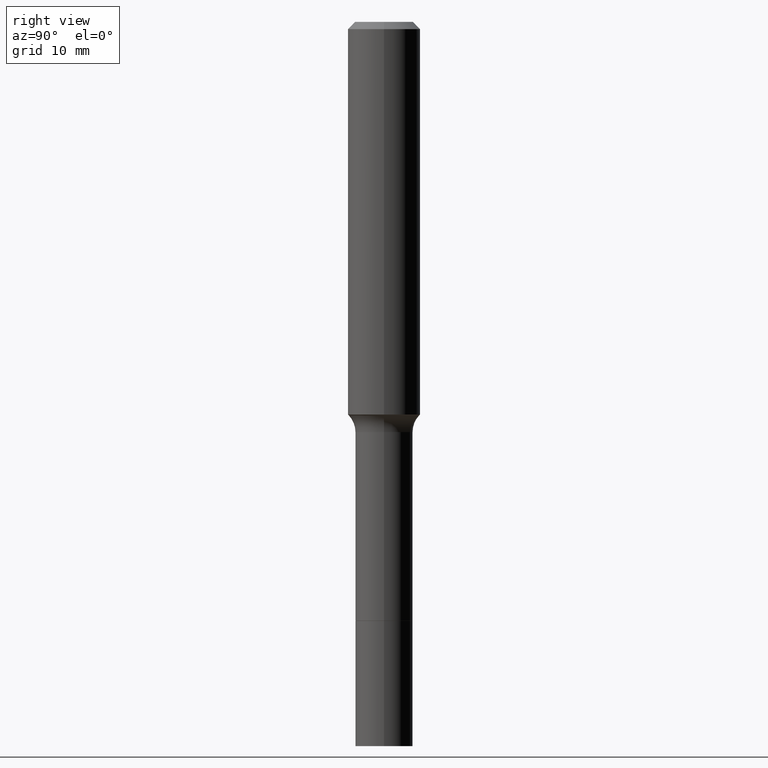
[diagram: clean part render]
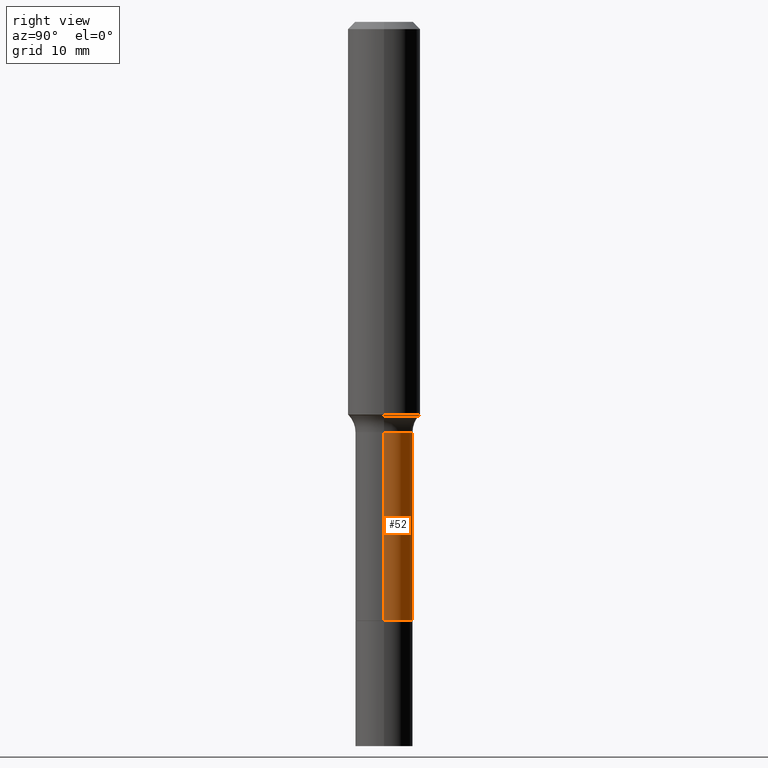
[diagram: same view with one face highlighted and labeled with its STEP entity id]
A machine part, right view. The second image highlights one B-rep face of the part: STEP entity #52.
In plain terms, the highlighted cylindrical surface (edge-blend (fillet) strip) has radius 2.3812 mm, axis along (-0, 0, 1).
Its self-contained STEP definition (entity closure, byte-faithful):
#8 = DIRECTION ( 'NONE',  ( -2.445468806185136597E-29, 3.491481338843145583E-15, 1.000000000000000000 ) ) ;
#18 = DIRECTION ( 'NONE',  ( -2.445468806185136597E-29, 3.491481338843145583E-15, 1.000000000000000000 ) ) ;
#38 = CIRCLE ( 'NONE', #97, 0.09374999999999994449 ) ;
#52 = ADVANCED_FACE ( 'NONE', ( #353 ), #188, .T. ) ;
#64 = VERTEX_POINT ( 'NONE', #270 ) ;
#97 = AXIS2_PLACEMENT_3D ( 'NONE', #409, #18, #450 ) ;
#100 = DIRECTION ( 'NONE',  ( 1.000000000000000000, -6.982962677686266711E-15, 4.876176775795935793E-29 ) ) ;
#134 = EDGE_CURVE ( 'NONE', #466, #302, #171, .T. ) ;
#147 = EDGE_CURVE ( 'NONE', #64, #480, #38, .T. ) ;
#156 = DIRECTION ( 'NONE',  ( -2.445468806185136877E-29, 3.491481338843145188E-15, 1.000000000000000000 ) ) ;
#171 = CIRCLE ( 'NONE', #489, 0.09375000000000001388 ) ;
#184 = DIRECTION ( 'NONE',  ( -2.445468806185136597E-29, 3.491481338843145583E-15, 1.000000000000000000 ) ) ;
#188 = CYLINDRICAL_SURFACE ( 'NONE', #249, 0.09374999999999997224 ) ;
#209 = CARTESIAN_POINT ( 'NONE',  ( -0.09374999999999997224, 6.661338147750937270E-16, -4.611501647113972594E-30 ) ) ;
#221 = VECTOR ( 'NONE', #156, 39.37007874015748143 ) ;
#246 = CARTESIAN_POINT ( 'NONE',  ( -0.09375000000000001388, -5.078924154224359757E-15, -1.952700000000000102 ) ) ;
#249 = AXIS2_PLACEMENT_3D ( 'NONE', #461, #184, #100 ) ;
#270 = CARTESIAN_POINT ( 'NONE',  ( 0.09374999999999994449, -5.326953078672984249E-15, -1.338200000000000056 ) ) ;
#280 = CARTESIAN_POINT ( 'NONE',  ( -0.09374999999999994449, -5.078924154224360545E-15, -1.338200000000000056 ) ) ;
#291 = CARTESIAN_POINT ( 'NONE',  ( 4.775266937837716483E-29, -6.817815610359010617E-15, -1.952700000000000102 ) ) ;
#295 = ORIENTED_EDGE ( 'NONE', *, *, #147, .F. ) ;
#302 = VERTEX_POINT ( 'NONE', #246 ) ;
#313 = ORIENTED_EDGE ( 'NONE', *, *, #412, .F. ) ;
#327 = CARTESIAN_POINT ( 'NONE',  ( 0.09375000000000001388, -7.472468361392097332E-15, -1.952700000000000102 ) ) ;
#353 = FACE_OUTER_BOUND ( 'NONE', #388, .T. ) ;
#359 = LINE ( 'NONE', #209, #221 ) ;
#382 = CARTESIAN_POINT ( 'NONE',  ( 0.09374999999999997224, -6.546527510330873069E-16, 4.571415727308688405E-30 ) ) ;
#388 = EDGE_LOOP ( 'NONE', ( #517, #437, #295, #313 ) ) ;
#394 = DIRECTION ( 'NONE',  ( -2.445468806185136877E-29, 3.491481338843145188E-15, 1.000000000000000000 ) ) ;
#409 = CARTESIAN_POINT ( 'NONE',  ( 3.272526356436949336E-29, -4.672300327639896745E-15, -1.338200000000000056 ) ) ;
#412 = EDGE_CURVE ( 'NONE', #466, #64, #431, .T. ) ;
#431 = LINE ( 'NONE', #382, #432 ) ;
#432 = VECTOR ( 'NONE', #394, 39.37007874015748143 ) ;
#437 = ORIENTED_EDGE ( 'NONE', *, *, #479, .T. ) ;
#450 = DIRECTION ( 'NONE',  ( 1.000000000000000000, -6.982962677686266711E-15, 0.000000000000000000 ) ) ;
#461 = CARTESIAN_POINT ( 'NONE',  ( 0.000000000000000000, 0.000000000000000000, 0.000000000000000000 ) ) ;
#466 = VERTEX_POINT ( 'NONE', #327 ) ;
#479 = EDGE_CURVE ( 'NONE', #302, #480, #359, .T. ) ;
#480 = VERTEX_POINT ( 'NONE', #280 ) ;
#489 = AXIS2_PLACEMENT_3D ( 'NONE', #291, #8, #497 ) ;
#497 = DIRECTION ( 'NONE',  ( 1.000000000000000000, -6.982962677686261189E-15, 0.000000000000000000 ) ) ;
#517 = ORIENTED_EDGE ( 'NONE', *, *, #134, .T. ) ;